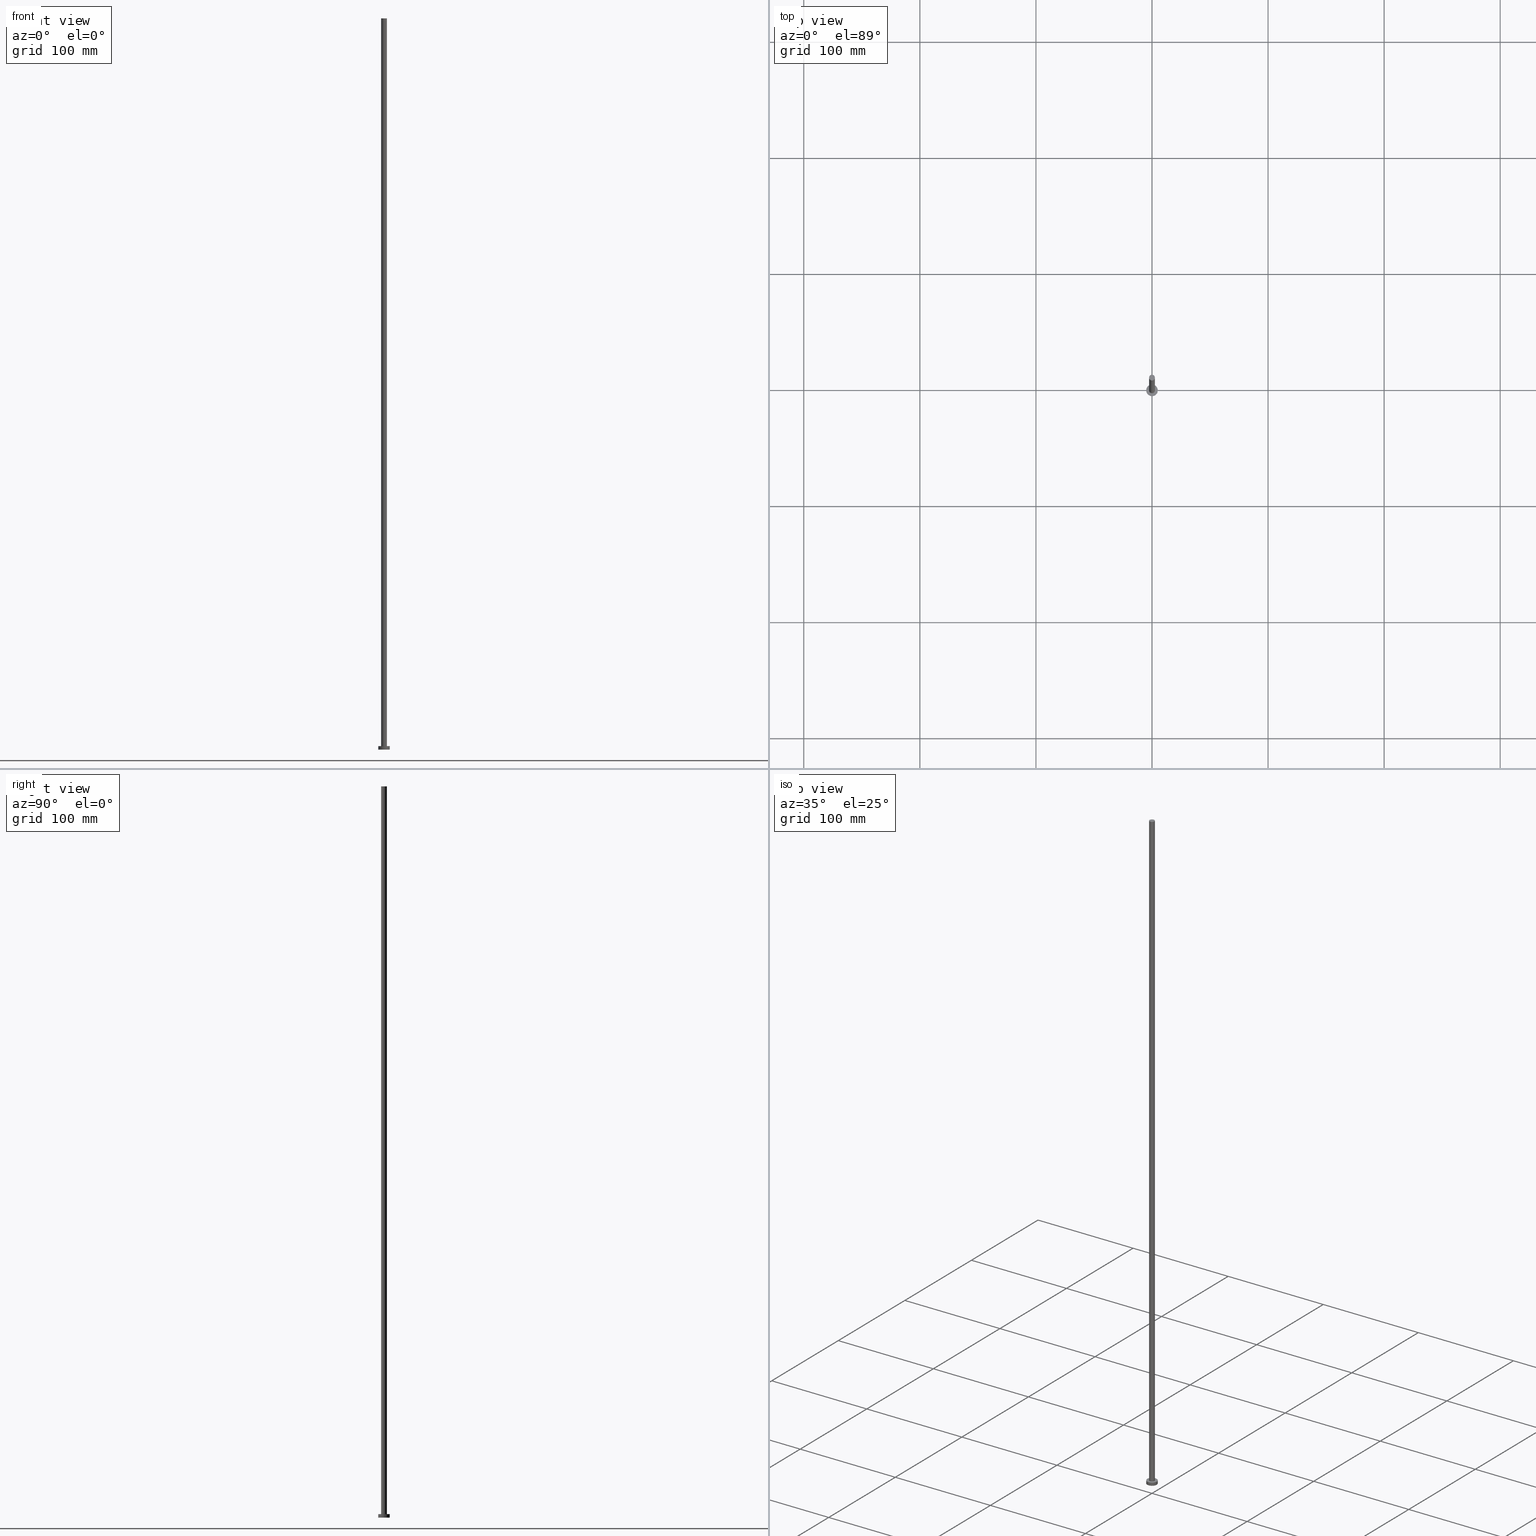
[diagram: canonical four-view strip — front | top / right | iso, engineering-drawing reading convention]
A machine part, canonical four-view strip (front | top / right | iso — engineering-drawing reading convention). The complete STEP part file that produces these views, byte-faithful:
ISO-10303-21;
HEADER;
FILE_DESCRIPTION (( 'STEP AP203' ),
    '1' );
FILE_NAME ('c249.STEP',
    '2026-02-06T12:41:22',
    ( '' ),
    ( '' ),
    'SwSTEP 2.0',
    'SolidWorks 2019',
    '' );
FILE_SCHEMA (( 'CONFIG_CONTROL_DESIGN' ));
ENDSEC;

DATA;
#1 = ORIENTED_EDGE ( 'NONE', *, *, #57, .T. ) ;
#2 = EDGE_LOOP ( 'NONE', ( #142, #87 ) ) ;
#3 = ORIENTED_EDGE ( 'NONE', *, *, #194, .F. ) ;
#4 = EDGE_CURVE ( 'NONE', #45, #6, #225, .T. ) ;
#5 = ORIENTED_EDGE ( 'NONE', *, *, #149, .F. ) ;
#6 = VERTEX_POINT ( 'NONE', #233 ) ;
#7 = CIRCLE ( 'NONE', #224, 5.000000000000000000 ) ;
#8 = CYLINDRICAL_SURFACE ( 'NONE', #255, 2.500000000000000000 ) ;
#9 = DIRECTION ( 'NONE',  ( 0.000000000000000000, 0.000000000000000000, 1.000000000000000000 ) ) ;
#10 = FACE_OUTER_BOUND ( 'NONE', #28, .T. ) ;
#11 = AXIS2_PLACEMENT_3D ( 'NONE', #164, #26, #145 ) ;
#12 = CARTESIAN_POINT ( 'NONE',  ( 0.000000000000000000, 0.000000000000000000, 0.000000000000000000 ) ) ;
#13 = PLANE ( 'NONE',  #128 ) ;
#14 = ADVANCED_FACE ( 'NONE', ( #187 ), #126, .F. ) ;
#15 = LOCAL_TIME ( 13, 41, 22.00000000000000000, #86 ) ;
#16 = ORIENTED_EDGE ( 'NONE', *, *, #216, .T. ) ;
#17 = UNCERTAINTY_MEASURE_WITH_UNIT (LENGTH_MEASURE( 1.000000000000000082E-05 ), #27, 'distance_accuracy_value', 'NONE');
#18 = ORIENTED_EDGE ( 'NONE', *, *, #135, .F. ) ;
#19 = CIRCLE ( 'NONE', #47, 5.000000000000000000 ) ;
#20 = APPROVAL_ROLE ( '' ) ;
#21 = PERSON_AND_ORGANIZATION ( #143, #176 ) ;
#22 = DATE_AND_TIME ( #140, #15 ) ;
#23 = EDGE_LOOP ( 'NONE', ( #81, #18, #71, #104 ) ) ;
#24 = APPROVAL_ROLE ( '' ) ;
#25 = AXIS2_PLACEMENT_3D ( 'NONE', #60, #134, #99 ) ;
#26 = DIRECTION ( 'NONE',  ( -0.000000000000000000, -0.000000000000000000, -1.000000000000000000 ) ) ;
#27 =( LENGTH_UNIT ( ) NAMED_UNIT ( * ) SI_UNIT ( .MILLI., .METRE. ) );
#28 = EDGE_LOOP ( 'NONE', ( #238, #5, #174, #16 ) ) ;
#29 = CC_DESIGN_APPROVAL ( #218, ( #232 ) ) ;
#30 = DIRECTION ( 'NONE',  ( 1.000000000000000000, 0.000000000000000000, 0.000000000000000000 ) ) ;
#31 = FACE_OUTER_BOUND ( 'NONE', #213, .T. ) ;
#32 = DIRECTION ( 'NONE',  ( 0.000000000000000000, 0.000000000000000000, 1.000000000000000000 ) ) ;
#33 = DIRECTION ( 'NONE',  ( 1.000000000000000000, 0.000000000000000000, -0.000000000000000000 ) ) ;
#34 = AXIS2_PLACEMENT_3D ( 'NONE', #151, #72, #50 ) ;
#35 = CARTESIAN_POINT ( 'NONE',  ( -5.000000000000000000, 0.000000000000000000, 3.000000000000000000 ) ) ;
#36 = LOCAL_TIME ( 13, 41, 22.00000000000000000, #208 ) ;
#37 = ADVANCED_FACE ( 'NONE', ( #10 ), #8, .T. ) ;
#38 = CARTESIAN_POINT ( 'NONE',  ( -2.500000000000000000, 0.000000000000000000, 630.0000000000000000 ) ) ;
#39 = AXIS2_PLACEMENT_3D ( 'NONE', #77, #58, #33 ) ;
#40 = APPROVAL_STATUS ( 'not_yet_approved' ) ;
#41 = CC_DESIGN_PERSON_AND_ORGANIZATION_ASSIGNMENT ( #160, #105, ( #147 ) ) ;
#42 = DATE_AND_TIME ( #120, #108 ) ;
#43 = PERSON_AND_ORGANIZATION ( #143, #176 ) ;
#44 = ADVANCED_FACE ( 'NONE', ( #130 ), #13, .T. ) ;
#45 = VERTEX_POINT ( 'NONE', #38 ) ;
#46 = EDGE_LOOP ( 'NONE', ( #69, #84 ) ) ;
#47 = AXIS2_PLACEMENT_3D ( 'NONE', #189, #114, #171 ) ;
#48 = CIRCLE ( 'NONE', #94, 5.000000000000000000 ) ;
#49 = DIRECTION ( 'NONE',  ( 0.000000000000000000, 0.000000000000000000, 1.000000000000000000 ) ) ;
#50 = DIRECTION ( 'NONE',  ( 1.000000000000000000, 0.000000000000000000, -0.000000000000000000 ) ) ;
#51 = VECTOR ( 'NONE', #148, 1000.000000000000000 ) ;
#52 = EDGE_CURVE ( 'NONE', #137, #45, #241, .T. ) ;
#53 = DIRECTION ( 'NONE',  ( 1.000000000000000000, 0.000000000000000000, -0.000000000000000000 ) ) ;
#54 = DIRECTION ( 'NONE',  ( 0.000000000000000000, 0.000000000000000000, 1.000000000000000000 ) ) ;
#55 = LINE ( 'NONE', #249, #125 ) ;
#56 = DIRECTION ( 'NONE',  ( 1.000000000000000000, 0.000000000000000000, 0.000000000000000000 ) ) ;
#57 = EDGE_CURVE ( 'NONE', #121, #6, #170, .T. ) ;
#58 = DIRECTION ( 'NONE',  ( 0.000000000000000000, 0.000000000000000000, 1.000000000000000000 ) ) ;
#59 = PERSON_AND_ORGANIZATION ( #143, #176 ) ;
#60 = CARTESIAN_POINT ( 'NONE',  ( 0.000000000000000000, 0.000000000000000000, 0.000000000000000000 ) ) ;
#61 = AXIS2_PLACEMENT_3D ( 'NONE', #242, #144, #223 ) ;
#62 = ORIENTED_EDGE ( 'NONE', *, *, #196, .F. ) ;
#63 = MECHANICAL_CONTEXT ( 'NONE', #207, 'mechanical' ) ;
#64 = VERTEX_POINT ( 'NONE', #115 ) ;
#65 = PERSON_AND_ORGANIZATION_ROLE ( 'classification_officer' ) ;
#66 = APPROVAL ( #40, 'NEUR�EN�' ) ;
#67 = CARTESIAN_POINT ( 'NONE',  ( -5.000000000000000000, 0.000000000000000000, 0.000000000000000000 ) ) ;
#68 = ADVANCED_BREP_SHAPE_REPRESENTATION ( 'c249', ( #179, #25 ), #247 ) ;
#69 = ORIENTED_EDGE ( 'NONE', *, *, #149, .T. ) ;
#70 = PRODUCT ( 'c249', 'c249', '', ( #63 ) ) ;
#71 = ORIENTED_EDGE ( 'NONE', *, *, #194, .T. ) ;
#72 = DIRECTION ( 'NONE',  ( 0.000000000000000000, 0.000000000000000000, 1.000000000000000000 ) ) ;
#73 = DIRECTION ( 'NONE',  ( -1.000000000000000000, 0.000000000000000000, 0.000000000000000000 ) ) ;
#74 = DESIGN_CONTEXT ( 'detailed design', #111, 'design' ) ;
#75 = CARTESIAN_POINT ( 'NONE',  ( 0.000000000000000000, 0.000000000000000000, 3.000000000000000000 ) ) ;
#76 = DIRECTION ( 'NONE',  ( 1.000000000000000000, 0.000000000000000000, 0.000000000000000000 ) ) ;
#77 = CARTESIAN_POINT ( 'NONE',  ( 0.000000000000000000, 0.000000000000000000, 0.000000000000000000 ) ) ;
#78 = FACE_OUTER_BOUND ( 'NONE', #23, .T. ) ;
#79 = DATE_AND_TIME ( #252, #36 ) ;
#80 = APPROVAL_STATUS ( 'not_yet_approved' ) ;
#81 = ORIENTED_EDGE ( 'NONE', *, *, #211, .F. ) ;
#82 = ADVANCED_FACE ( 'NONE', ( #169, #167 ), #245, .T. ) ;
#83 = CC_DESIGN_SECURITY_CLASSIFICATION ( #232, ( #147 ) ) ;
#84 = ORIENTED_EDGE ( 'NONE', *, *, #52, .T. ) ;
#85 = APPROVAL_DATE_TIME ( #22, #218 ) ;
#86 = COORDINATED_UNIVERSAL_TIME_OFFSET ( 1, 0, .AHEAD. ) ;
#87 = ORIENTED_EDGE ( 'NONE', *, *, #91, .F. ) ;
#88 = ORIENTED_EDGE ( 'NONE', *, *, #57, .F. ) ;
#89 = CARTESIAN_POINT ( 'NONE',  ( -5.000000000000000000, 0.000000000000000000, 3.000000000000000000 ) ) ;
#90 = CC_DESIGN_APPROVAL ( #163, ( #147 ) ) ;
#91 = EDGE_CURVE ( 'NONE', #64, #157, #19, .T. ) ;
#92 = DIRECTION ( 'NONE',  ( 0.000000000000000000, 0.000000000000000000, 1.000000000000000000 ) ) ;
#93 = ADVANCED_FACE ( 'NONE', ( #31 ), #203, .T. ) ;
#94 = AXIS2_PLACEMENT_3D ( 'NONE', #226, #49, #30 ) ;
#95 = CARTESIAN_POINT ( 'NONE',  ( 0.000000000000000000, 0.000000000000000000, 630.0000000000000000 ) ) ;
#96 = CARTESIAN_POINT ( 'NONE',  ( 0.000000000000000000, 0.000000000000000000, 630.0000000000000000 ) ) ;
#97 = DIRECTION ( 'NONE',  ( 1.000000000000000000, 0.000000000000000000, 0.000000000000000000 ) ) ;
#98 = EDGE_CURVE ( 'NONE', #157, #64, #7, .T. ) ;
#99 = DIRECTION ( 'NONE',  ( 1.000000000000000000, 0.000000000000000000, 0.000000000000000000 ) ) ;
#100 = AXIS2_PLACEMENT_3D ( 'NONE', #183, #246, #56 ) ;
#101 = CIRCLE ( 'NONE', #210, 2.500000000000000000 ) ;
#102 = DATE_AND_TIME ( #253, #193 ) ;
#103 = CC_DESIGN_DATE_AND_TIME_ASSIGNMENT ( #42, #195, ( #232 ) ) ;
#104 = ORIENTED_EDGE ( 'NONE', *, *, #98, .T. ) ;
#105 = PERSON_AND_ORGANIZATION_ROLE ( 'creator' ) ;
#106 = SECURITY_CLASSIFICATION_LEVEL ( 'unclassified' ) ;
#107 = CYLINDRICAL_SURFACE ( 'NONE', #11, 5.000000000000000000 ) ;
#108 = LOCAL_TIME ( 13, 41, 22.00000000000000000, #221 ) ;
#109 = ORIENTED_EDGE ( 'NONE', *, *, #196, .T. ) ;
#110 = LINE ( 'NONE', #89, #212 ) ;
#111 = APPLICATION_CONTEXT ( 'configuration controlled 3d designs of mechanical parts and assemblies' ) ;
#112 = CC_DESIGN_PERSON_AND_ORGANIZATION_ASSIGNMENT ( #237, #136, ( #70 ) ) ;
#113 = VECTOR ( 'NONE', #188, 1000.000000000000000 ) ;
#114 = DIRECTION ( 'NONE',  ( 0.000000000000000000, 0.000000000000000000, 1.000000000000000000 ) ) ;
#115 = CARTESIAN_POINT ( 'NONE',  ( 5.000000000000000000, 6.123233995736766282E-16, 0.000000000000000000 ) ) ;
#116 = CLOSED_SHELL ( 'NONE', ( #93, #181, #153, #82, #14, #37, #44 ) ) ;
#117 = DIRECTION ( 'NONE',  ( -0.000000000000000000, -0.000000000000000000, -1.000000000000000000 ) ) ;
#118 = PRODUCT_DEFINITION_SHAPE ( 'NONE', 'NONE',  #227 ) ;
#119 = APPROVAL_DATE_TIME ( #138, #163 ) ;
#120 = CALENDAR_DATE ( 2026, 6, 2 ) ;
#121 = VERTEX_POINT ( 'NONE', #205 ) ;
#122 = FACE_OUTER_BOUND ( 'NONE', #254, .T. ) ;
#123 = ORIENTED_EDGE ( 'NONE', *, *, #91, .T. ) ;
#124 = CIRCLE ( 'NONE', #165, 2.500000000000000000 ) ;
#125 = VECTOR ( 'NONE', #166, 1000.000000000000000 ) ;
#126 = PLANE ( 'NONE',  #39 ) ;
#127 = CARTESIAN_POINT ( 'NONE',  ( 2.500000000000000000, 3.061616997868383141E-16, 630.0000000000000000 ) ) ;
#128 = AXIS2_PLACEMENT_3D ( 'NONE', #95, #54, #53 ) ;
#129 = APPROVAL_PERSON_ORGANIZATION ( #59, #163, #24 ) ;
#130 = FACE_OUTER_BOUND ( 'NONE', #46, .T. ) ;
#131 = COORDINATED_UNIVERSAL_TIME_OFFSET ( 1, 0, .AHEAD. ) ;
#132 = CC_DESIGN_DATE_AND_TIME_ASSIGNMENT ( #79, #155, ( #227 ) ) ;
#133 = CARTESIAN_POINT ( 'NONE',  ( 0.000000000000000000, 0.000000000000000000, 630.0000000000000000 ) ) ;
#134 = DIRECTION ( 'NONE',  ( 0.000000000000000000, 0.000000000000000000, 1.000000000000000000 ) ) ;
#135 = EDGE_CURVE ( 'NONE', #146, #192, #152, .T. ) ;
#136 = PERSON_AND_ORGANIZATION_ROLE ( 'design_owner' ) ;
#137 = VERTEX_POINT ( 'NONE', #127 ) ;
#138 = DATE_AND_TIME ( #219, #139 ) ;
#139 = LOCAL_TIME ( 13, 41, 22.00000000000000000, #178 ) ;
#140 = CALENDAR_DATE ( 2026, 6, 2 ) ;
#141 = CARTESIAN_POINT ( 'NONE',  ( 5.000000000000000000, 6.123233995736766282E-16, 3.000000000000000000 ) ) ;
#142 = ORIENTED_EDGE ( 'NONE', *, *, #98, .F. ) ;
#143 = PERSON ( 'NEUR�EN�', 'NEUR�EN�', 'NEUR�EN�', ('NEUR�EN�'), ('NEUR�EN�'), ('NEUR�EN�') ) ;
#144 = DIRECTION ( 'NONE',  ( -0.000000000000000000, -0.000000000000000000, -1.000000000000000000 ) ) ;
#145 = DIRECTION ( 'NONE',  ( -1.000000000000000000, 0.000000000000000000, 0.000000000000000000 ) ) ;
#146 = VERTEX_POINT ( 'NONE', #35 ) ;
#147 = PRODUCT_DEFINITION_FORMATION_WITH_SPECIFIED_SOURCE ( 'LIBOVOLN�', '', #70, .NOT_KNOWN. ) ;
#148 = DIRECTION ( 'NONE',  ( -0.000000000000000000, -0.000000000000000000, -1.000000000000000000 ) ) ;
#149 = EDGE_CURVE ( 'NONE', #45, #137, #124, .T. ) ;
#150 = CARTESIAN_POINT ( 'NONE',  ( -2.500000000000000000, 0.000000000000000000, 630.0000000000000000 ) ) ;
#151 = CARTESIAN_POINT ( 'NONE',  ( 0.000000000000000000, 0.000000000000000000, 3.000000000000000000 ) ) ;
#152 = CIRCLE ( 'NONE', #191, 5.000000000000000000 ) ;
#153 = ADVANCED_FACE ( 'NONE', ( #78 ), #162, .T. ) ;
#154 = DIRECTION ( 'NONE',  ( 0.000000000000000000, 0.000000000000000000, 1.000000000000000000 ) ) ;
#155 = DATE_TIME_ROLE ( 'creation_date' ) ;
#156 = AXIS2_PLACEMENT_3D ( 'NONE', #251, #92, #204 ) ;
#157 = VERTEX_POINT ( 'NONE', #67 ) ;
#158 = ORIENTED_EDGE ( 'NONE', *, *, #211, .T. ) ;
#159 = CC_DESIGN_PERSON_AND_ORGANIZATION_ASSIGNMENT ( #200, #240, ( #147 ) ) ;
#160 = PERSON_AND_ORGANIZATION ( #143, #176 ) ;
#161 = ORIENTED_EDGE ( 'NONE', *, *, #4, .F. ) ;
#162 = CYLINDRICAL_SURFACE ( 'NONE', #61, 5.000000000000000000 ) ;
#163 = APPROVAL ( #80, 'NEUR�EN�' ) ;
#164 = CARTESIAN_POINT ( 'NONE',  ( 0.000000000000000000, 0.000000000000000000, 3.000000000000000000 ) ) ;
#165 = AXIS2_PLACEMENT_3D ( 'NONE', #96, #172, #230 ) ;
#166 = DIRECTION ( 'NONE',  ( -0.000000000000000000, -0.000000000000000000, -1.000000000000000000 ) ) ;
#167 = FACE_OUTER_BOUND ( 'NONE', #199, .T. ) ;
#168 =( NAMED_UNIT ( * ) PLANE_ANGLE_UNIT ( ) SI_UNIT ( $, .RADIAN. ) );
#169 = FACE_BOUND ( 'NONE', #222, .T. ) ;
#170 = CIRCLE ( 'NONE', #156, 2.500000000000000000 ) ;
#171 = DIRECTION ( 'NONE',  ( 1.000000000000000000, 0.000000000000000000, 0.000000000000000000 ) ) ;
#172 = DIRECTION ( 'NONE',  ( 0.000000000000000000, 0.000000000000000000, 1.000000000000000000 ) ) ;
#173 = CC_DESIGN_PERSON_AND_ORGANIZATION_ASSIGNMENT ( #21, #65, ( #232 ) ) ;
#174 = ORIENTED_EDGE ( 'NONE', *, *, #4, .T. ) ;
#175 = AXIS2_PLACEMENT_3D ( 'NONE', #248, #117, #185 ) ;
#176 = ORGANIZATION ( 'NEUR�EN�', 'NEUR�EN�', '' ) ;
#177 = APPROVAL_DATE_TIME ( #102, #66 ) ;
#178 = COORDINATED_UNIVERSAL_TIME_OFFSET ( 1, 0, .AHEAD. ) ;
#179 = MANIFOLD_SOLID_BREP ( 'P�idat vysunut�m3', #116 ) ;
#180 = CC_DESIGN_PERSON_AND_ORGANIZATION_ASSIGNMENT ( #190, #239, ( #227 ) ) ;
#181 = ADVANCED_FACE ( 'NONE', ( #122 ), #107, .T. ) ;
#182 = SHAPE_DEFINITION_REPRESENTATION ( #118, #68 ) ;
#183 = CARTESIAN_POINT ( 'NONE',  ( 0.000000000000000000, 0.000000000000000000, 630.0000000000000000 ) ) ;
#184 = CARTESIAN_POINT ( 'NONE',  ( 2.500000000000000000, 3.061616997868383141E-16, 630.0000000000000000 ) ) ;
#185 = DIRECTION ( 'NONE',  ( -1.000000000000000000, 0.000000000000000000, 0.000000000000000000 ) ) ;
#186 =( NAMED_UNIT ( * ) SI_UNIT ( $, .STERADIAN. ) SOLID_ANGLE_UNIT ( ) );
#187 = FACE_OUTER_BOUND ( 'NONE', #2, .T. ) ;
#188 = DIRECTION ( 'NONE',  ( -0.000000000000000000, -0.000000000000000000, -1.000000000000000000 ) ) ;
#189 = CARTESIAN_POINT ( 'NONE',  ( 0.000000000000000000, 0.000000000000000000, 0.000000000000000000 ) ) ;
#190 = PERSON_AND_ORGANIZATION ( #143, #176 ) ;
#191 = AXIS2_PLACEMENT_3D ( 'NONE', #75, #154, #97 ) ;
#192 = VERTEX_POINT ( 'NONE', #141 ) ;
#193 = LOCAL_TIME ( 13, 41, 22.00000000000000000, #131 ) ;
#194 = EDGE_CURVE ( 'NONE', #146, #157, #110, .T. ) ;
#195 = DATE_TIME_ROLE ( 'classification_date' ) ;
#196 = EDGE_CURVE ( 'NONE', #192, #146, #48, .T. ) ;
#197 = APPROVAL_ROLE ( '' ) ;
#198 = DIRECTION ( 'NONE',  ( -0.000000000000000000, -0.000000000000000000, -1.000000000000000000 ) ) ;
#199 = EDGE_LOOP ( 'NONE', ( #236, #109 ) ) ;
#200 = PERSON_AND_ORGANIZATION ( #143, #176 ) ;
#201 = ORIENTED_EDGE ( 'NONE', *, *, #52, .F. ) ;
#202 = APPROVAL_PERSON_ORGANIZATION ( #43, #218, #197 ) ;
#203 = CYLINDRICAL_SURFACE ( 'NONE', #175, 2.500000000000000000 ) ;
#204 = DIRECTION ( 'NONE',  ( 1.000000000000000000, 0.000000000000000000, 0.000000000000000000 ) ) ;
#205 = CARTESIAN_POINT ( 'NONE',  ( 2.500000000000000000, 3.061616997868383141E-16, 3.000000000000000000 ) ) ;
#206 = APPROVAL_PERSON_ORGANIZATION ( #215, #66, #20 ) ;
#207 = APPLICATION_CONTEXT ( 'configuration controlled 3d designs of mechanical parts and assemblies' ) ;
#208 = COORDINATED_UNIVERSAL_TIME_OFFSET ( 1, 0, .AHEAD. ) ;
#209 = DIRECTION ( 'NONE',  ( -0.000000000000000000, -0.000000000000000000, -1.000000000000000000 ) ) ;
#210 = AXIS2_PLACEMENT_3D ( 'NONE', #250, #32, #76 ) ;
#211 = EDGE_CURVE ( 'NONE', #192, #64, #55, .T. ) ;
#212 = VECTOR ( 'NONE', #198, 1000.000000000000000 ) ;
#213 = EDGE_LOOP ( 'NONE', ( #201, #220, #1, #161 ) ) ;
#214 = APPLICATION_PROTOCOL_DEFINITION ( 'international standard', 'config_control_design', 1994, #207 ) ;
#215 = PERSON_AND_ORGANIZATION ( #143, #176 ) ;
#216 = EDGE_CURVE ( 'NONE', #6, #121, #101, .T. ) ;
#217 = APPROVAL_STATUS ( 'not_yet_approved' ) ;
#218 = APPROVAL ( #217, 'NEUR�EN�' ) ;
#219 = CALENDAR_DATE ( 2026, 6, 2 ) ;
#220 = ORIENTED_EDGE ( 'NONE', *, *, #228, .T. ) ;
#221 = COORDINATED_UNIVERSAL_TIME_OFFSET ( 1, 0, .AHEAD. ) ;
#222 = EDGE_LOOP ( 'NONE', ( #243, #88 ) ) ;
#223 = DIRECTION ( 'NONE',  ( -1.000000000000000000, 0.000000000000000000, 0.000000000000000000 ) ) ;
#224 = AXIS2_PLACEMENT_3D ( 'NONE', #12, #9, #229 ) ;
#225 = LINE ( 'NONE', #150, #113 ) ;
#226 = CARTESIAN_POINT ( 'NONE',  ( 0.000000000000000000, 0.000000000000000000, 3.000000000000000000 ) ) ;
#227 = PRODUCT_DEFINITION ( 'NEZN�M�', '', #147, #74 ) ;
#228 = EDGE_CURVE ( 'NONE', #137, #121, #231, .T. ) ;
#229 = DIRECTION ( 'NONE',  ( 1.000000000000000000, 0.000000000000000000, 0.000000000000000000 ) ) ;
#230 = DIRECTION ( 'NONE',  ( 1.000000000000000000, 0.000000000000000000, 0.000000000000000000 ) ) ;
#231 = LINE ( 'NONE', #184, #51 ) ;
#232 = SECURITY_CLASSIFICATION ( '', '', #106 ) ;
#233 = CARTESIAN_POINT ( 'NONE',  ( -2.500000000000000000, 0.000000000000000000, 3.000000000000000000 ) ) ;
#234 = APPLICATION_PROTOCOL_DEFINITION ( 'international standard', 'config_control_design', 1994, #111 ) ;
#235 = CC_DESIGN_APPROVAL ( #66, ( #227 ) ) ;
#236 = ORIENTED_EDGE ( 'NONE', *, *, #135, .T. ) ;
#237 = PERSON_AND_ORGANIZATION ( #143, #176 ) ;
#238 = ORIENTED_EDGE ( 'NONE', *, *, #228, .F. ) ;
#239 = PERSON_AND_ORGANIZATION_ROLE ( 'creator' ) ;
#240 = PERSON_AND_ORGANIZATION_ROLE ( 'design_supplier' ) ;
#241 = CIRCLE ( 'NONE', #100, 2.500000000000000000 ) ;
#242 = CARTESIAN_POINT ( 'NONE',  ( 0.000000000000000000, 0.000000000000000000, 3.000000000000000000 ) ) ;
#243 = ORIENTED_EDGE ( 'NONE', *, *, #216, .F. ) ;
#244 = PRODUCT_RELATED_PRODUCT_CATEGORY ( 'detail', '', ( #70 ) ) ;
#245 = PLANE ( 'NONE',  #34 ) ;
#246 = DIRECTION ( 'NONE',  ( 0.000000000000000000, 0.000000000000000000, 1.000000000000000000 ) ) ;
#247 =( GEOMETRIC_REPRESENTATION_CONTEXT ( 3 ) GLOBAL_UNCERTAINTY_ASSIGNED_CONTEXT ( ( #17 ) ) GLOBAL_UNIT_ASSIGNED_CONTEXT ( ( #27, #168, #186 ) ) REPRESENTATION_CONTEXT ( 'NONE', 'WORKASPACE' ) );
#248 = CARTESIAN_POINT ( 'NONE',  ( 0.000000000000000000, 0.000000000000000000, 630.0000000000000000 ) ) ;
#249 = CARTESIAN_POINT ( 'NONE',  ( 5.000000000000000000, 6.123233995736766282E-16, 3.000000000000000000 ) ) ;
#250 = CARTESIAN_POINT ( 'NONE',  ( 0.000000000000000000, 0.000000000000000000, 3.000000000000000000 ) ) ;
#251 = CARTESIAN_POINT ( 'NONE',  ( 0.000000000000000000, 0.000000000000000000, 3.000000000000000000 ) ) ;
#252 = CALENDAR_DATE ( 2026, 6, 2 ) ;
#253 = CALENDAR_DATE ( 2026, 6, 2 ) ;
#254 = EDGE_LOOP ( 'NONE', ( #62, #158, #123, #3 ) ) ;
#255 = AXIS2_PLACEMENT_3D ( 'NONE', #133, #209, #73 ) ;
ENDSEC;
END-ISO-10303-21;
